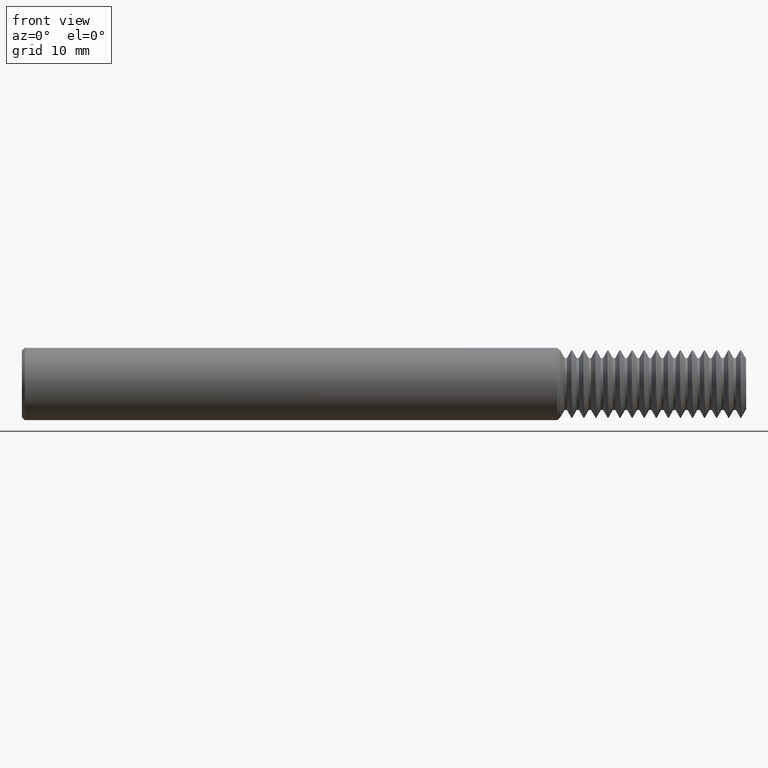
[diagram: clean part render]
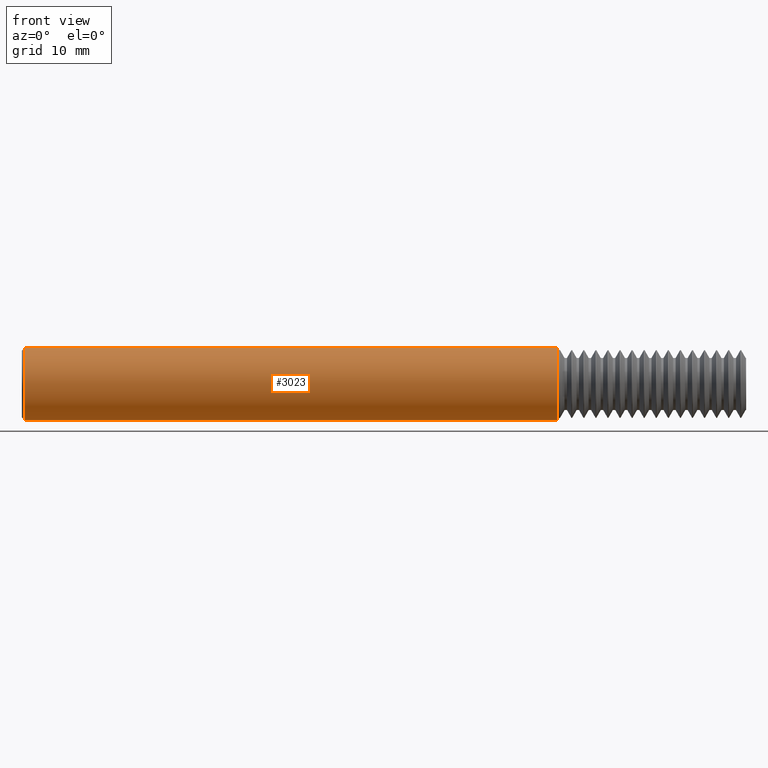
[diagram: same view with one face highlighted and labeled with its STEP entity id]
A machine part, front view. The second image highlights one B-rep face of the part: STEP entity #3023.
In plain terms, the highlighted cylindrical surface (edge-blend (fillet) strip) has radius 3.1712 mm, axis along (1, -0, -0).
Its self-contained STEP definition (entity closure, byte-faithful):
#35 = EDGE_CURVE ( 'NONE', #352, #824, #982, .T. ) ;
#37 = DIRECTION ( 'NONE',  ( 0.000000000000000000, 0.000000000000000000, -1.000000000000000000 ) ) ;
#54 = CARTESIAN_POINT ( 'NONE',  ( 0.01000000000000016674, 1.528971528735470422E-17, 0.1248500000000000026 ) ) ;
#89 = AXIS2_PLACEMENT_3D ( 'NONE', #1293, #292, #37 ) ;
#103 = VERTEX_POINT ( 'NONE', #1461 ) ;
#195 = CIRCLE ( 'NONE', #89, 0.1248500000000000026 ) ;
#292 = DIRECTION ( 'NONE',  ( 1.000000000000000000, -0.000000000000000000, -0.000000000000000000 ) ) ;
#352 = VERTEX_POINT ( 'NONE', #54 ) ;
#446 = VERTEX_POINT ( 'NONE', #1186 ) ;
#824 = VERTEX_POINT ( 'NONE', #2975 ) ;
#911 = CARTESIAN_POINT ( 'NONE',  ( 2.500000000000000000, 0.000000000000000000, -0.1248500000000000026 ) ) ;
#975 = CYLINDRICAL_SURFACE ( 'NONE', #2709, 0.1248500000000000026 ) ;
#982 = LINE ( 'NONE', #1216, #3298 ) ;
#1151 = EDGE_CURVE ( 'NONE', #352, #103, #2498, .T. ) ;
#1163 = CARTESIAN_POINT ( 'NONE',  ( 2.500000000000000000, 0.000000000000000000, 0.000000000000000000 ) ) ;
#1178 = ORIENTED_EDGE ( 'NONE', *, *, #1151, .T. ) ;
#1186 = CARTESIAN_POINT ( 'NONE',  ( 1.848150000000000404, 0.000000000000000000, -0.1248500000000000026 ) ) ;
#1216 = CARTESIAN_POINT ( 'NONE',  ( 2.500000000000000000, 1.528971528735470422E-17, 0.1248500000000000026 ) ) ;
#1293 = CARTESIAN_POINT ( 'NONE',  ( 1.848150000000000404, 0.000000000000000000, 0.000000000000000000 ) ) ;
#1327 = VECTOR ( 'NONE', #1441, 39.37007874015748143 ) ;
#1441 = DIRECTION ( 'NONE',  ( 1.000000000000000000, -0.000000000000000000, -0.000000000000000000 ) ) ;
#1461 = CARTESIAN_POINT ( 'NONE',  ( 0.01000000000000016674, 0.000000000000000000, -0.1248500000000000026 ) ) ;
#1518 = DIRECTION ( 'NONE',  ( 1.000000000000000000, -0.000000000000000000, -0.000000000000000000 ) ) ;
#1543 = EDGE_CURVE ( 'NONE', #824, #446, #195, .T. ) ;
#1760 = LINE ( 'NONE', #911, #1327 ) ;
#1902 = ORIENTED_EDGE ( 'NONE', *, *, #35, .F. ) ;
#1964 = FACE_OUTER_BOUND ( 'NONE', #2850, .T. ) ;
#2026 = DIRECTION ( 'NONE',  ( 1.000000000000000000, -0.000000000000000000, -0.000000000000000000 ) ) ;
#2252 = ORIENTED_EDGE ( 'NONE', *, *, #1543, .F. ) ;
#2338 = DIRECTION ( 'NONE',  ( 1.000000000000000000, -0.000000000000000000, -0.000000000000000000 ) ) ;
#2480 = DIRECTION ( 'NONE',  ( 0.000000000000000000, 0.000000000000000000, -1.000000000000000000 ) ) ;
#2498 = CIRCLE ( 'NONE', #2835, 0.1248500000000000026 ) ;
#2556 = EDGE_CURVE ( 'NONE', #103, #446, #1760, .T. ) ;
#2600 = CARTESIAN_POINT ( 'NONE',  ( 0.01000000000000016674, 0.000000000000000000, 0.000000000000000000 ) ) ;
#2709 = AXIS2_PLACEMENT_3D ( 'NONE', #1163, #2026, #2480 ) ;
#2758 = ORIENTED_EDGE ( 'NONE', *, *, #2556, .T. ) ;
#2835 = AXIS2_PLACEMENT_3D ( 'NONE', #2600, #2338, #3411 ) ;
#2850 = EDGE_LOOP ( 'NONE', ( #1902, #1178, #2758, #2252 ) ) ;
#2975 = CARTESIAN_POINT ( 'NONE',  ( 1.848150000000000404, 1.528971528735470422E-17, 0.1248500000000000026 ) ) ;
#3023 = ADVANCED_FACE ( 'NONE', ( #1964 ), #975, .T. ) ;
#3298 = VECTOR ( 'NONE', #1518, 39.37007874015748143 ) ;
#3411 = DIRECTION ( 'NONE',  ( 0.000000000000000000, 0.000000000000000000, 1.000000000000000000 ) ) ;